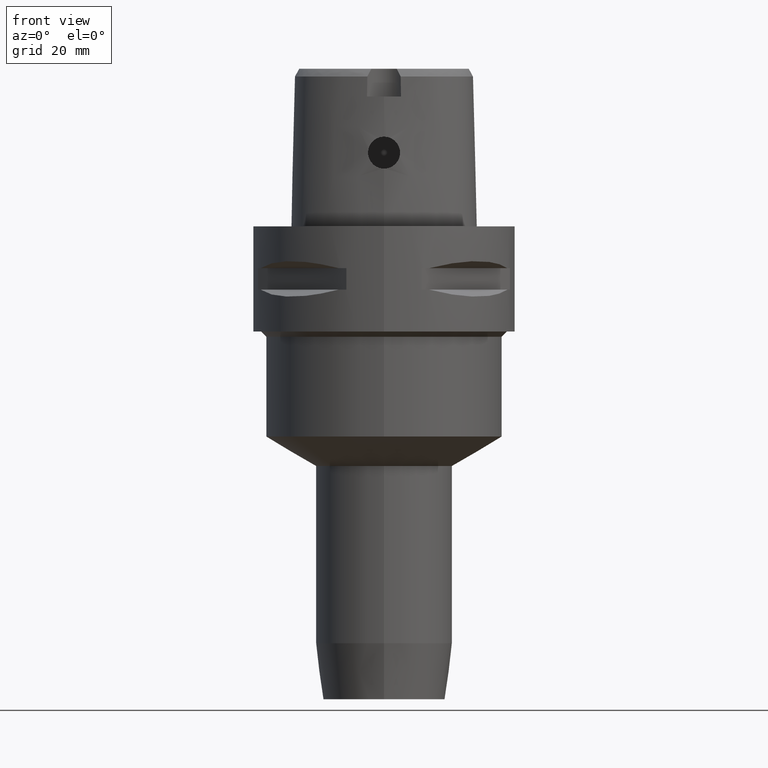
[diagram: clean part render]
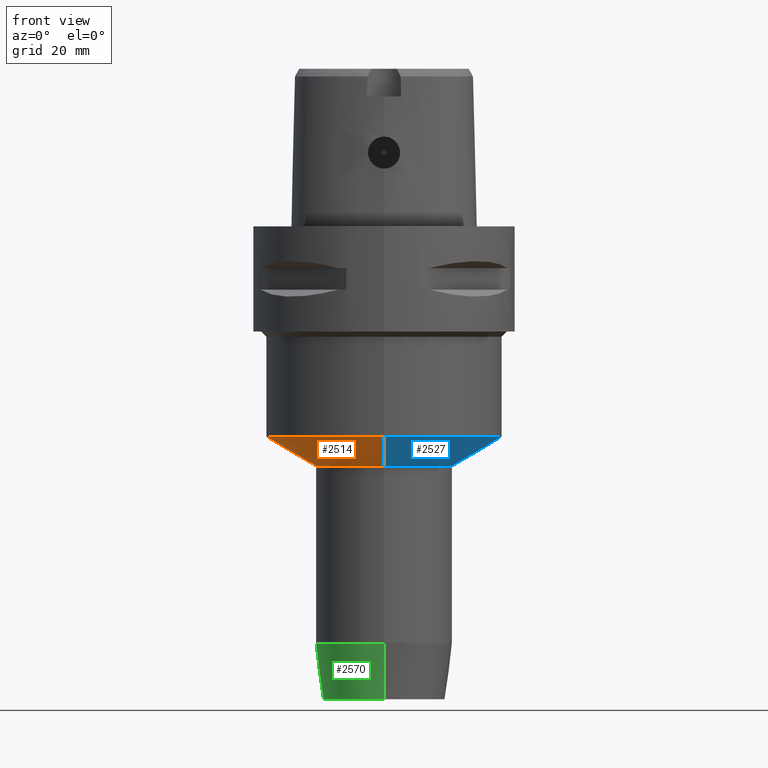
[diagram: same view with three faces highlighted in distinct colors, each labeled with its STEP entity id]
A machine part, front view with three faces highlighted in distinct colors.
Their STEP definitions:

[orange] entity #2514 — the highlighted conical surface has half-angle 59.465 deg.
#566=CARTESIAN_POINT('',(0.E0,0.E0,-4.000025274301E1));
#567=DIRECTION('',(0.E0,0.E0,1.E0));
#568=DIRECTION('',(0.E0,1.E0,0.E0));
#569=AXIS2_PLACEMENT_3D('',#566,#567,#568);
#574=DIRECTION('',(0.E0,8.613189621567E-1,-5.080646075347E-1));
#575=VECTOR('',#574,1.102959579133E1);
#576=CARTESIAN_POINT('',(0.E0,-2.25E1,-4.000025274301E1));
#577=LINE('',#576,#575);
#581=CARTESIAN_POINT('',(0.E0,0.E0,-4.5604E1));
#582=DIRECTION('',(0.E0,0.E0,-1.E0));
#583=DIRECTION('',(0.E0,-1.E0,0.E0));
#584=AXIS2_PLACEMENT_3D('',#581,#582,#583);
#589=DIRECTION('',(0.E0,-8.613189621567E-1,-5.080646075347E-1));
#590=VECTOR('',#589,1.102959579133E1);
#591=CARTESIAN_POINT('',(0.E0,2.25E1,-4.000025274301E1));
#592=LINE('',#591,#590);
#1610=CARTESIAN_POINT('',(0.E0,2.25E1,-4.000025274301E1));
#1611=VERTEX_POINT('',#1610);
#1612=CARTESIAN_POINT('',(0.E0,-2.25E1,-4.000025274301E1));
#1613=VERTEX_POINT('',#1612);
#1614=CARTESIAN_POINT('',(0.E0,1.3E1,-4.5604E1));
#1615=VERTEX_POINT('',#1614);
#1616=CARTESIAN_POINT('',(0.E0,-1.3E1,-4.5604E1));
#1617=VERTEX_POINT('',#1616);
#2500=CARTESIAN_POINT('',(0.E0,0.E0,-4.280212637150E1));
#2501=DIRECTION('',(0.E0,0.E0,1.E0));
#2502=DIRECTION('',(0.E0,1.E0,0.E0));
#2503=AXIS2_PLACEMENT_3D('',#2500,#2501,#2502);
#2504=CONICAL_SURFACE('',#2503,1.775E1,5.9465E1);
#2506=ORIENTED_EDGE('',*,*,#2505,.F.);
#2507=ORIENTED_EDGE('',*,*,#2495,.T.);
#2509=ORIENTED_EDGE('',*,*,#2508,.T.);
#2511=ORIENTED_EDGE('',*,*,#2510,.T.);
#2512=EDGE_LOOP('',(#2506,#2507,#2509,#2511));
#2513=FACE_OUTER_BOUND('',#2512,.F.);
#570=CIRCLE('',#569,2.25E1);
#585=CIRCLE('',#584,1.3E1);
#2495=EDGE_CURVE('',#1611,#1613,#570,.T.);
#2505=EDGE_CURVE('',#1611,#1615,#592,.T.);
#2508=EDGE_CURVE('',#1613,#1617,#577,.T.);
#2510=EDGE_CURVE('',#1617,#1615,#585,.T.);
#2514=ADVANCED_FACE('',(#2513),#2504,.T.);

[blue] entity #2527 — the highlighted conical surface has half-angle 59.465 deg.
#574=DIRECTION('',(0.E0,8.613189621567E-1,-5.080646075347E-1));
#575=VECTOR('',#574,1.102959579133E1);
#576=CARTESIAN_POINT('',(0.E0,-2.25E1,-4.000025274301E1));
#577=LINE('',#576,#575);
#589=DIRECTION('',(0.E0,-8.613189621567E-1,-5.080646075347E-1));
#590=VECTOR('',#589,1.102959579133E1);
#591=CARTESIAN_POINT('',(0.E0,2.25E1,-4.000025274301E1));
#592=LINE('',#591,#590);
#596=CARTESIAN_POINT('',(0.E0,0.E0,-4.5604E1));
#597=DIRECTION('',(0.E0,0.E0,-1.E0));
#598=DIRECTION('',(0.E0,1.E0,0.E0));
#599=AXIS2_PLACEMENT_3D('',#596,#597,#598);
#604=CARTESIAN_POINT('',(0.E0,0.E0,-4.000025274301E1));
#605=DIRECTION('',(0.E0,0.E0,1.E0));
#606=DIRECTION('',(0.E0,-1.E0,0.E0));
#607=AXIS2_PLACEMENT_3D('',#604,#605,#606);
#1610=CARTESIAN_POINT('',(0.E0,2.25E1,-4.000025274301E1));
#1611=VERTEX_POINT('',#1610);
#1612=CARTESIAN_POINT('',(0.E0,-2.25E1,-4.000025274301E1));
#1613=VERTEX_POINT('',#1612);
#1614=CARTESIAN_POINT('',(0.E0,1.3E1,-4.5604E1));
#1615=VERTEX_POINT('',#1614);
#1616=CARTESIAN_POINT('',(0.E0,-1.3E1,-4.5604E1));
#1617=VERTEX_POINT('',#1616);
#2515=CARTESIAN_POINT('',(0.E0,0.E0,-4.280212637150E1));
#2516=DIRECTION('',(0.E0,0.E0,1.E0));
#2517=DIRECTION('',(0.E0,1.E0,0.E0));
#2518=AXIS2_PLACEMENT_3D('',#2515,#2516,#2517);
#2519=CONICAL_SURFACE('',#2518,1.775E1,5.9465E1);
#2520=ORIENTED_EDGE('',*,*,#2505,.T.);
#2522=ORIENTED_EDGE('',*,*,#2521,.T.);
#2523=ORIENTED_EDGE('',*,*,#2508,.F.);
#2524=ORIENTED_EDGE('',*,*,#2479,.T.);
#2525=EDGE_LOOP('',(#2520,#2522,#2523,#2524));
#2526=FACE_OUTER_BOUND('',#2525,.F.);
#600=CIRCLE('',#599,1.3E1);
#608=CIRCLE('',#607,2.25E1);
#2479=EDGE_CURVE('',#1613,#1611,#608,.T.);
#2505=EDGE_CURVE('',#1611,#1615,#592,.T.);
#2508=EDGE_CURVE('',#1613,#1617,#577,.T.);
#2521=EDGE_CURVE('',#1615,#1617,#600,.T.);
#2527=ADVANCED_FACE('',(#2526),#2519,.T.);

[green] entity #2570 — the highlighted conical surface has half-angle 7.5 deg.
#626=CARTESIAN_POINT('',(0.E0,0.E0,-7.933556122573E1));
#627=DIRECTION('',(0.E0,0.E0,1.E0));
#628=DIRECTION('',(0.E0,1.E0,0.E0));
#629=AXIS2_PLACEMENT_3D('',#626,#627,#628);
#634=DIRECTION('',(0.E0,1.305261922200E-1,-9.914448613738E-1));
#635=VECTOR('',#634,1.075646179606E1);
#636=CARTESIAN_POINT('',(0.E0,-1.3E1,-7.933556122573E1));
#637=LINE('',#636,#635);
#641=DIRECTION('',(0.E0,-1.305261922200E-1,-9.914448613738E-1));
#642=VECTOR('',#641,1.075646179606E1);
#643=CARTESIAN_POINT('',(0.E0,1.3E1,-7.933556122573E1));
#644=LINE('',#643,#642);
#664=CARTESIAN_POINT('',(0.E0,0.E0,-9.E1));
#665=DIRECTION('',(0.E0,0.E0,1.E0));
#666=DIRECTION('',(0.E0,1.E0,0.E0));
#667=AXIS2_PLACEMENT_3D('',#664,#665,#666);
#1618=CARTESIAN_POINT('',(0.E0,1.3E1,-7.933556122573E1));
#1619=VERTEX_POINT('',#1618);
#1620=CARTESIAN_POINT('',(0.E0,-1.3E1,-7.933556122573E1));
#1621=VERTEX_POINT('',#1620);
#1622=CARTESIAN_POINT('',(0.E0,1.1596E1,-9.E1));
#1623=VERTEX_POINT('',#1622);
#1624=CARTESIAN_POINT('',(0.E0,-1.1596E1,-9.E1));
#1625=VERTEX_POINT('',#1624);
#2556=CARTESIAN_POINT('',(0.E0,0.E0,-8.466778061287E1));
#2557=DIRECTION('',(0.E0,0.E0,1.E0));
#2558=DIRECTION('',(0.E0,1.E0,0.E0));
#2559=AXIS2_PLACEMENT_3D('',#2556,#2557,#2558);
#2560=CONICAL_SURFACE('',#2559,1.2298E1,7.5E0);
#2562=ORIENTED_EDGE('',*,*,#2561,.F.);
#2563=ORIENTED_EDGE('',*,*,#2551,.T.);
#2565=ORIENTED_EDGE('',*,*,#2564,.T.);
#2567=ORIENTED_EDGE('',*,*,#2566,.F.);
#2568=EDGE_LOOP('',(#2562,#2563,#2565,#2567));
#2569=FACE_OUTER_BOUND('',#2568,.F.);
#630=CIRCLE('',#629,1.3E1);
#668=CIRCLE('',#667,1.1596E1);
#2551=EDGE_CURVE('',#1619,#1621,#630,.T.);
#2561=EDGE_CURVE('',#1619,#1623,#644,.T.);
#2564=EDGE_CURVE('',#1621,#1625,#637,.T.);
#2566=EDGE_CURVE('',#1623,#1625,#668,.T.);
#2570=ADVANCED_FACE('',(#2569),#2560,.T.);